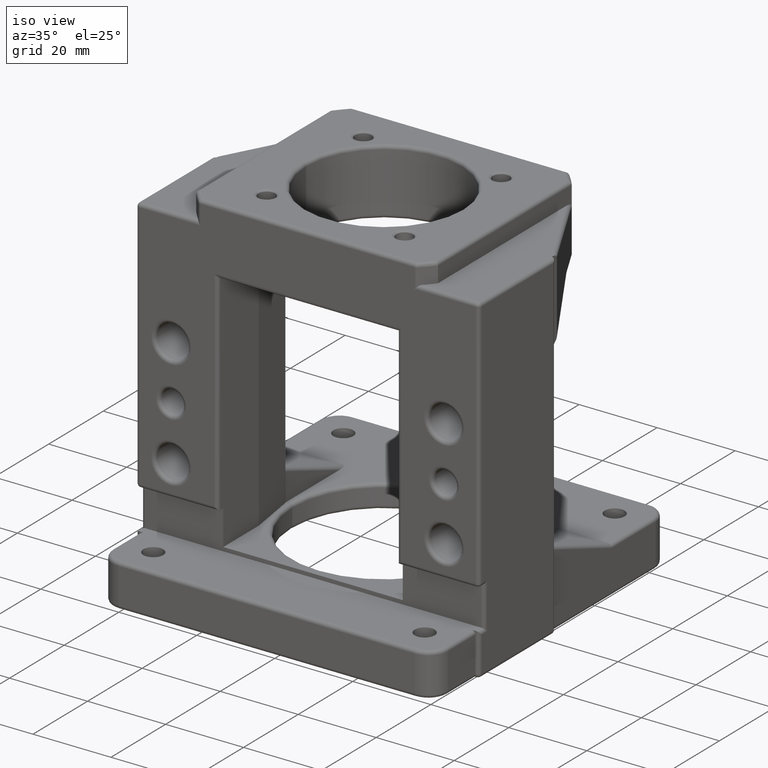
[diagram: clean part render]
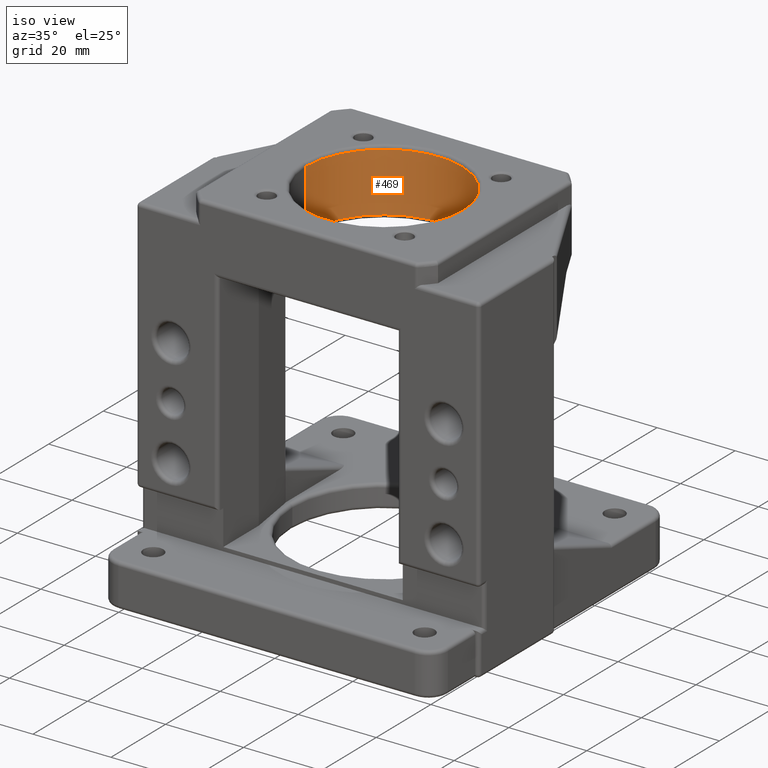
[diagram: same view with one face highlighted and labeled with its STEP entity id]
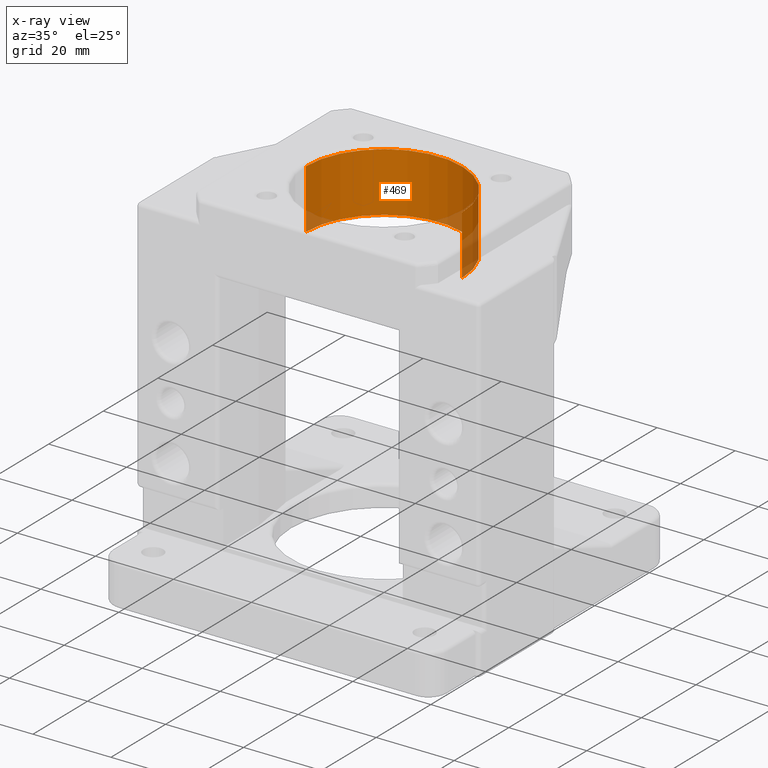
[diagram: x-ray of the same camera — body ghosted, the highlighted face saturated]
A machine part, iso view. The second image highlights one B-rep face of the part: STEP entity #469.
The next image is the same camera in x-ray: the body ghosted, the highlighted face saturated — about 10% of this face is hidden behind the body in this view.
In plain terms, the highlighted cylindrical surface (partial cylindrical patch) has radius 20 mm, axis along (-0, -0, 1).
Its self-contained STEP definition (entity closure, byte-faithful):
#205 = DIRECTION ( 'NONE',  ( 1.000000000000000000, 0.0000000000000000000, 0.0000000000000000000 ) ) ;
#215 = CARTESIAN_POINT ( 'NONE',  ( 0.0000000000000000000, 0.0000000000000000000, 54.00000000000000700 ) ) ;
#216 = DIRECTION ( 'NONE',  ( -0.0000000000000000000, -0.0000000000000000000, 1.000000000000000000 ) ) ;
#469 = ADVANCED_FACE ( 'NONE', ( #6096 ), #6097, .F. ) ;
#1321 = VECTOR ( 'NONE', #1562, 1000.000000000000000 ) ;
#1541 = CARTESIAN_POINT ( 'NONE',  ( -20.00000000000000000, 2.449293598294706500E-015, 54.00000000000000700 ) ) ;
#1542 = DIRECTION ( 'NONE',  ( -0.0000000000000000000, -0.0000000000000000000, 1.000000000000000000 ) ) ;
#1561 = CARTESIAN_POINT ( 'NONE',  ( 20.00000000000000000, 0.0000000000000000000, 54.00000000000000700 ) ) ;
#1562 = DIRECTION ( 'NONE',  ( -0.0000000000000000000, -0.0000000000000000000, 1.000000000000000000 ) ) ;
#2496 = CARTESIAN_POINT ( 'NONE',  ( 0.0000000000000000000, 0.0000000000000000000, 69.90000000000000600 ) ) ;
#2497 = DIRECTION ( 'NONE',  ( 0.0000000000000000000, 0.0000000000000000000, -1.000000000000000000 ) ) ;
#2498 = DIRECTION ( 'NONE',  ( -1.000000000000000000, 0.0000000000000000000, 0.0000000000000000000 ) ) ;
#2762 = CARTESIAN_POINT ( 'NONE',  ( -20.00000000000000000, 2.449293598294706500E-015, 69.90000000000000600 ) ) ;
#2773 = CARTESIAN_POINT ( 'NONE',  ( 20.00000000000000000, 0.0000000000000000000, 69.90000000000000600 ) ) ;
#2804 = CARTESIAN_POINT ( 'NONE',  ( 20.00000000000000000, 0.0000000000000000000, 85.10000000000000900 ) ) ;
#2805 = CARTESIAN_POINT ( 'NONE',  ( -20.00000000000000000, 2.449293598294706500E-015, 85.10000000000000900 ) ) ;
#3351 = EDGE_LOOP ( 'NONE', ( #6977, #6979, #6980, #6978 ) ) ;
#3835 = EDGE_CURVE ( 'NONE', #7186, #7187, #7425, .T. ) ;
#3985 = EDGE_CURVE ( 'NONE', #6619, #7187, #4513, .T. ) ;
#3991 = EDGE_CURVE ( 'NONE', #6630, #7186, #4521, .T. ) ;
#4513 = LINE ( 'NONE', #1541, #6512 ) ;
#4521 = LINE ( 'NONE', #1561, #1321 ) ;
#4993 = EDGE_CURVE ( 'NONE', #6619, #6630, #6298, .T. ) ;
#5196 = DIRECTION ( 'NONE',  ( 1.000000000000000000, 0.0000000000000000000, 0.0000000000000000000 ) ) ;
#5280 = DIRECTION ( 'NONE',  ( -0.0000000000000000000, 0.0000000000000000000, 1.000000000000000000 ) ) ;
#5281 = CARTESIAN_POINT ( 'NONE',  ( 0.0000000000000000000, 0.0000000000000000000, 85.10000000000000900 ) ) ;
#5292 = AXIS2_PLACEMENT_3D ( 'NONE', #215, #216, #205 ) ;
#6096 = FACE_OUTER_BOUND ( 'NONE', #3351, .T. ) ;
#6097 = CYLINDRICAL_SURFACE ( 'NONE', #5292, 20.00000000000000000 ) ;
#6298 = CIRCLE ( 'NONE', #6315, 20.00000000000000000 ) ;
#6315 = AXIS2_PLACEMENT_3D ( 'NONE', #2496, #2497, #2498 ) ;
#6512 = VECTOR ( 'NONE', #1542, 1000.000000000000000 ) ;
#6619 = VERTEX_POINT ( 'NONE', #2762 ) ;
#6630 = VERTEX_POINT ( 'NONE', #2773 ) ;
#6977 = ORIENTED_EDGE ( 'NONE', *, *, #3985, .F. ) ;
#6978 = ORIENTED_EDGE ( 'NONE', *, *, #3835, .T. ) ;
#6979 = ORIENTED_EDGE ( 'NONE', *, *, #4993, .T. ) ;
#6980 = ORIENTED_EDGE ( 'NONE', *, *, #3991, .T. ) ;
#7186 = VERTEX_POINT ( 'NONE', #2804 ) ;
#7187 = VERTEX_POINT ( 'NONE', #2805 ) ;
#7425 = CIRCLE ( 'NONE', #7426, 20.00000000000000000 ) ;
#7426 = AXIS2_PLACEMENT_3D ( 'NONE', #5281, #5280, #5196 ) ;